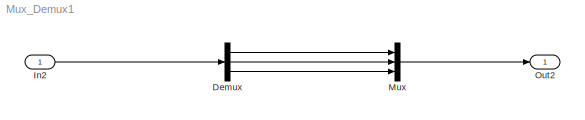
MODEL Mux_Demux1
KIND model
BLOCK [Demux] Demux
  DisplayOption = bar
  Outputs = 3
  Ports = [1, 3]
  SID = 2
BLOCK [Inport] In2
  IconDisplay = Port number
  PortDimensions = 3
  SID = 1
BLOCK [Mux] Mux
  DisplayOption = bar
  Inputs = 3
  Ports = [3, 1]
  SID = 3
BLOCK [Outport] Out2
  IconDisplay = Port number
  SID = 4
LINE Demux:1 -> Mux:1
LINE Demux:2 -> Mux:2
LINE Demux:3 -> Mux:3
LINE In2:1 -> Demux:1
LINE Mux:1 -> Out2:1
